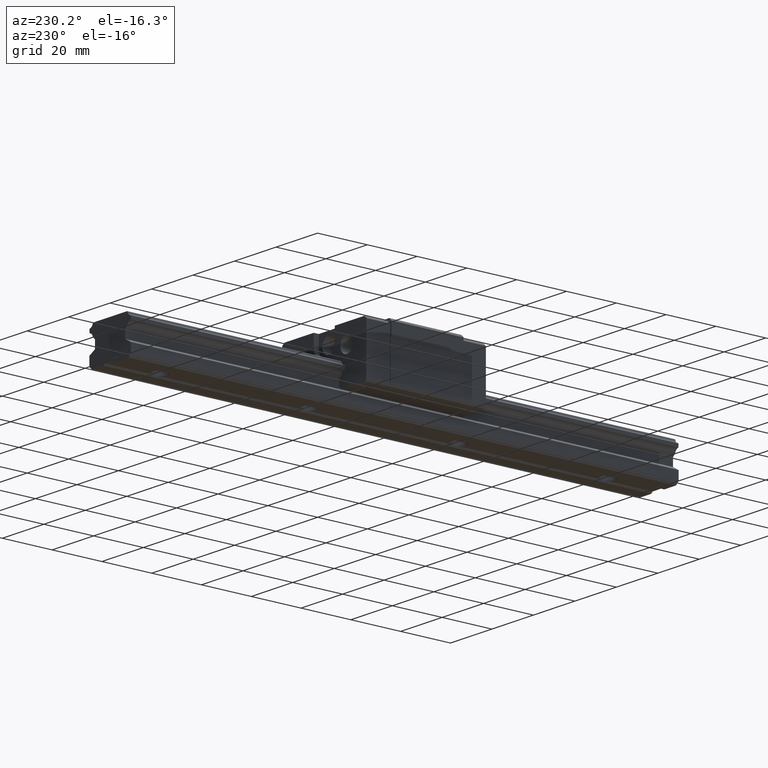
[diagram: clean part render]
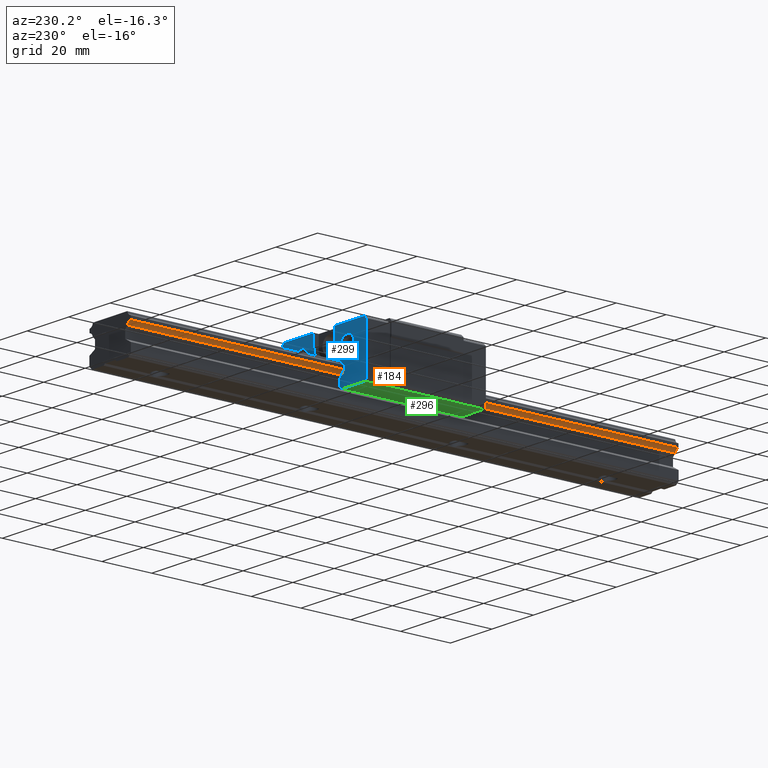
[diagram: same view with three faces highlighted in distinct colors, each labeled with its STEP entity id]
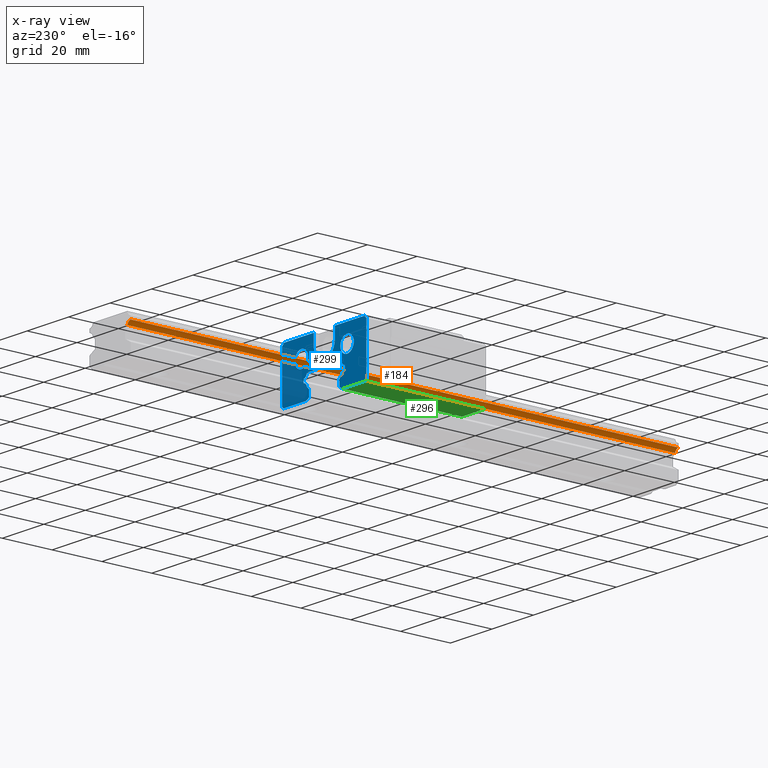
[diagram: x-ray of the same camera — body ghosted, the three highlighted faces saturated]
A machine part, auxiliary view with three faces highlighted in distinct colors.
The next image is the same camera in x-ray (body ghosted, the three faces saturated) — at least one of them is partly hidden behind the body in this view.
Their STEP definitions:

[orange] entity #184 — the highlighted cylindrical surface (edge-blend (fillet) strip) has radius 1.8 mm, axis along (0, -1, 0).
#184=ADVANCED_FACE('',(#382),#383,.F.);
#382=FACE_OUTER_BOUND('',#768,.T.);
#383=CYLINDRICAL_SURFACE('',#769,1.8);
#768=EDGE_LOOP('',(#1323,#1324,#1325,#1326));
#769=AXIS2_PLACEMENT_3D('',#1327,#1328,#1329);
#1323=ORIENTED_EDGE('',*,*,#2796,.T.);
#1324=ORIENTED_EDGE('',*,*,#2797,.F.);
#1325=ORIENTED_EDGE('',*,*,#2798,.F.);
#1326=ORIENTED_EDGE('',*,*,#2799,.T.);
#1327=CARTESIAN_POINT('',(-10.1449012806,110.0,9.5551077194));
#1328=DIRECTION('',(0.0,-1.0,0.0));
#1329=DIRECTION('',(0.0,0.0,-1.0));
#2796=EDGE_CURVE('',#3305,#3355,#3357,.T.);
#2797=EDGE_CURVE('',#3358,#3355,#3359,.T.);
#2798=EDGE_CURVE('',#3360,#3358,#3361,.T.);
#2799=EDGE_CURVE('',#3360,#3305,#3362,.T.);
#3305=VERTEX_POINT('',#4131);
#3355=VERTEX_POINT('',#4203);
#3357=CIRCLE('',#4206,1.8);
#3358=VERTEX_POINT('',#4207);
#3359=LINE('',#4208,#4209);
#3360=VERTEX_POINT('',#4210);
#3361=CIRCLE('',#4211,1.8);
#3362=LINE('',#4212,#4213);
#4131=CARTESIAN_POINT('',(-8.3723830664,-110.0,9.8684432906));
#4203=CARTESIAN_POINT('',(-9.83156570942089,-110.0,11.327625933646));
#4206=AXIS2_PLACEMENT_3D('',#5459,#5460,#5461);
#4207=CARTESIAN_POINT('',(-9.83156570942089,110.0,11.327625933646));
#4208=CARTESIAN_POINT('',(-9.83156570942089,110.0,11.327625933646));
#4209=VECTOR('',#5462,1000.0);
#4210=CARTESIAN_POINT('',(-8.3723830664,110.0,9.8684432906));
#4211=AXIS2_PLACEMENT_3D('',#5463,#5464,#5465);
#4212=CARTESIAN_POINT('',(-8.3723830664,110.0,9.8684432906));
#4213=VECTOR('',#5466,1000.0);
#5459=CARTESIAN_POINT('',(-10.1449012806,-110.0,9.5551077194));
#5460=DIRECTION('',(0.0,-1.0,0.0));
#5461=DIRECTION('',(1.0,0.0,0.0));
#5462=DIRECTION('',(0.0,-1.0,0.0));
#5463=CARTESIAN_POINT('',(-10.1449012806,110.0,9.5551077194));
#5464=DIRECTION('',(0.0,-1.0,0.0));
#5465=DIRECTION('',(1.0,0.0,0.0));
#5466=DIRECTION('',(0.0,-1.0,0.0));

[blue] entity #299 — the highlighted planar face has unit normal (0, -1, 0).
#299=ADVANCED_FACE('',(#626,#627,#628),#629,.F.);
#626=FACE_OUTER_BOUND('',#1012,.T.);
#627=FACE_BOUND('',#1013,.T.);
#628=FACE_BOUND('',#1014,.T.);
#629=PLANE('',#1015);
#1012=EDGE_LOOP('',(#2274,#2275,#2276,#2277,#2278,#2279,#2280,#2281,#2282,#2283,#2284,#2285,#2286,#2287,#2288,#2289,#2290,#2291,#2292,#2293,#2294,#2295,#2296,#2297,#2298,#2299,#2300,#2301,#2302,#2303,#2304,#2305,#2306));
#1013=EDGE_LOOP('',(#2307,#2308));
#1014=EDGE_LOOP('',(#2309,#2310));
#1015=AXIS2_PLACEMENT_3D('',#2311,#2312,#2313);
#2274=ORIENTED_EDGE('',*,*,#3064,.F.);
#2275=ORIENTED_EDGE('',*,*,#3102,.F.);
#2276=ORIENTED_EDGE('',*,*,#3103,.F.);
#2277=ORIENTED_EDGE('',*,*,#3055,.F.);
#2278=ORIENTED_EDGE('',*,*,#3104,.T.);
#2279=ORIENTED_EDGE('',*,*,#3098,.T.);
#2280=ORIENTED_EDGE('',*,*,#3075,.F.);
#2281=ORIENTED_EDGE('',*,*,#2927,.T.);
#2282=ORIENTED_EDGE('',*,*,#3077,.T.);
#2283=ORIENTED_EDGE('',*,*,#3069,.T.);
#2284=ORIENTED_EDGE('',*,*,#3099,.T.);
#2285=ORIENTED_EDGE('',*,*,#3005,.F.);
#2286=ORIENTED_EDGE('',*,*,#3085,.T.);
#2287=ORIENTED_EDGE('',*,*,#2957,.T.);
#2288=ORIENTED_EDGE('',*,*,#3100,.F.);
#2289=ORIENTED_EDGE('',*,*,#2964,.F.);
#2290=ORIENTED_EDGE('',*,*,#2892,.T.);
#2291=ORIENTED_EDGE('',*,*,#3105,.T.);
#2292=ORIENTED_EDGE('',*,*,#2940,.T.);
#2293=ORIENTED_EDGE('',*,*,#3101,.F.);
#2294=ORIENTED_EDGE('',*,*,#2980,.F.);
#2295=ORIENTED_EDGE('',*,*,#2924,.F.);
#2296=ORIENTED_EDGE('',*,*,#3044,.T.);
#2297=ORIENTED_EDGE('',*,*,#3079,.F.);
#2298=ORIENTED_EDGE('',*,*,#2932,.F.);
#2299=ORIENTED_EDGE('',*,*,#3037,.F.);
#2300=ORIENTED_EDGE('',*,*,#3084,.F.);
#2301=ORIENTED_EDGE('',*,*,#3059,.F.);
#2302=ORIENTED_EDGE('',*,*,#3106,.F.);
#2303=ORIENTED_EDGE('',*,*,#3062,.F.);
#2304=ORIENTED_EDGE('',*,*,#2962,.T.);
#2305=ORIENTED_EDGE('',*,*,#3107,.F.);
#2306=ORIENTED_EDGE('',*,*,#3003,.T.);
#2307=ORIENTED_EDGE('',*,*,#2921,.T.);
#2308=ORIENTED_EDGE('',*,*,#2911,.T.);
#2309=ORIENTED_EDGE('',*,*,#2919,.T.);
#2310=ORIENTED_EDGE('',*,*,#2915,.T.);
#2311=CARTESIAN_POINT('',(10.1449012806,24.0,9.5551077194));
#2312=DIRECTION('',(0.0,-1.0,0.0));
#2313=DIRECTION('',(0.0,0.0,-1.0));
#2892=EDGE_CURVE('',#3504,#3501,#3505,.T.);
#2911=EDGE_CURVE('',#3538,#3535,#3539,.T.);
#2915=EDGE_CURVE('',#3546,#3543,#3547,.T.);
#2919=EDGE_CURVE('',#3543,#3546,#3552,.T.);
#2921=EDGE_CURVE('',#3535,#3538,#3554,.T.);
#2924=EDGE_CURVE('',#3558,#3560,#3561,.T.);
#2927=EDGE_CURVE('',#3566,#3563,#3567,.T.);
#2932=EDGE_CURVE('',#3574,#3576,#3577,.T.);
#2940=EDGE_CURVE('',#3592,#3590,#3593,.T.);
#2957=EDGE_CURVE('',#3625,#3623,#3626,.T.);
#2962=EDGE_CURVE('',#3628,#3633,#3635,.T.);
#2964=EDGE_CURVE('',#3504,#3638,#3639,.T.);
#2980=EDGE_CURVE('',#3560,#3666,#3667,.T.);
#3003=EDGE_CURVE('',#3700,#3705,#3707,.T.);
#3005=EDGE_CURVE('',#3708,#3710,#3711,.T.);
#3037=EDGE_CURVE('',#3760,#3574,#3761,.T.);
#3044=EDGE_CURVE('',#3558,#3768,#3770,.T.);
#3055=EDGE_CURVE('',#3784,#3779,#3786,.T.);
#3059=EDGE_CURVE('',#3792,#3787,#3794,.T.);
#3062=EDGE_CURVE('',#3628,#3795,#3799,.T.);
#3064=EDGE_CURVE('',#3801,#3705,#3802,.T.);
#3069=EDGE_CURVE('',#3808,#3809,#3810,.T.);
#3075=EDGE_CURVE('',#3566,#3816,#3820,.T.);
#3077=EDGE_CURVE('',#3563,#3808,#3822,.T.);
#3079=EDGE_CURVE('',#3576,#3768,#3824,.T.);
#3084=EDGE_CURVE('',#3787,#3760,#3829,.T.);
#3085=EDGE_CURVE('',#3708,#3625,#3830,.T.);
#3098=EDGE_CURVE('',#3844,#3816,#3846,.T.);
#3099=EDGE_CURVE('',#3809,#3710,#3847,.T.);
#3100=EDGE_CURVE('',#3638,#3623,#3848,.T.);
#3101=EDGE_CURVE('',#3666,#3590,#3849,.T.);
#3102=EDGE_CURVE('',#3850,#3801,#3851,.T.);
#3103=EDGE_CURVE('',#3779,#3850,#3852,.T.);
#3104=EDGE_CURVE('',#3784,#3844,#3853,.T.);
#3105=EDGE_CURVE('',#3501,#3592,#3854,.T.);
#3106=EDGE_CURVE('',#3795,#3792,#3855,.T.);
#3107=EDGE_CURVE('',#3700,#3633,#3856,.T.);
#3501=VERTEX_POINT('',#4417);
#3504=VERTEX_POINT('',#4421);
#3505=CIRCLE('',#4422,5.05);
#3535=VERTEX_POINT('',#4461);
#3538=VERTEX_POINT('',#4465);
#3539=CIRCLE('',#4466,3.25);
#3543=VERTEX_POINT('',#4471);
#3546=VERTEX_POINT('',#4475);
#3547=CIRCLE('',#4476,3.25);
#3552=CIRCLE('',#4482,3.25);
#3554=CIRCLE('',#4484,3.25);
#3558=VERTEX_POINT('',#4489);
#3560=VERTEX_POINT('',#4492);
#3561=LINE('',#4493,#4494);
#3563=VERTEX_POINT('',#4497);
#3566=VERTEX_POINT('',#4501);
#3567=LINE('',#4502,#4503);
#3574=VERTEX_POINT('',#4513);
#3576=VERTEX_POINT('',#4516);
#3577=LINE('',#4517,#4518);
#3590=VERTEX_POINT('',#4537);
#3592=VERTEX_POINT('',#4540);
#3593=LINE('',#4541,#4542);
#3623=VERTEX_POINT('',#4586);
#3625=VERTEX_POINT('',#4589);
#3626=LINE('',#4590,#4591);
#3628=VERTEX_POINT('',#4594);
#3633=VERTEX_POINT('',#4601);
#3635=LINE('',#4604,#4605);
#3638=VERTEX_POINT('',#4609);
#3639=LINE('',#4610,#4611);
#3666=VERTEX_POINT('',#4653);
#3667=LINE('',#4654,#4655);
#3700=VERTEX_POINT('',#4705);
#3705=VERTEX_POINT('',#4712);
#3707=LINE('',#4715,#4716);
#3708=VERTEX_POINT('',#4717);
#3710=VERTEX_POINT('',#4720);
#3711=LINE('',#4721,#4722);
#3760=VERTEX_POINT('',#4797);
#3761=LINE('',#4798,#4799);
#3768=VERTEX_POINT('',#4809);
#3770=LINE('',#4812,#4813);
#3779=VERTEX_POINT('',#4828);
#3784=VERTEX_POINT('',#4835);
#3786=LINE('',#4838,#4839);
#3787=VERTEX_POINT('',#4840);
#3792=VERTEX_POINT('',#4846);
#3794=CIRCLE('',#4849,1.8);
#3795=VERTEX_POINT('',#4850);
#3799=LINE('',#4856,#4857);
#3801=VERTEX_POINT('',#4860);
#3802=LINE('',#4861,#4862);
#3808=VERTEX_POINT('',#4871);
#3809=VERTEX_POINT('',#4872);
#3810=LINE('',#4873,#4874);
#3816=VERTEX_POINT('',#4883);
#3820=CIRCLE('',#4888,1.8);
#3822=LINE('',#4891,#4892);
#3824=LINE('',#4895,#4896);
#3829=LINE('',#4903,#4904);
#3830=LINE('',#4905,#4906);
#3844=VERTEX_POINT('',#4926);
#3846=LINE('',#4929,#4930);
#3847=LINE('',#4931,#4932);
#3848=LINE('',#4933,#4934);
#3849=LINE('',#4935,#4936);
#3850=VERTEX_POINT('',#4937);
#3851=LINE('',#4938,#4939);
#3852=CIRCLE('',#4940,1.8);
#3853=LINE('',#4941,#4942);
#3854=CIRCLE('',#4943,5.05);
#3855=LINE('',#4944,#4945);
#3856=CIRCLE('',#4946,1.8);
#4417=CARTESIAN_POINT('',(6.18426208680301E-016,24.0,16.850009));
#4421=CARTESIAN_POINT('',(-5.05,24.0,21.900009));
#4422=AXIS2_PLACEMENT_3D('',#5611,#5612,#5613);
#4461=CARTESIAN_POINT('',(10.9999955,24.0,16.150009));
#4465=CARTESIAN_POINT('',(10.9999955,24.0,22.650009));
#4466=AXIS2_PLACEMENT_3D('',#5648,#5649,#5650);
#4471=CARTESIAN_POINT('',(-10.9999955,24.0,16.150009));
#4475=CARTESIAN_POINT('',(-10.9999955,24.0,22.650009));
#4476=AXIS2_PLACEMENT_3D('',#5656,#5657,#5658);
#4482=AXIS2_PLACEMENT_3D('',#5666,#5667,#5668);
#4484=AXIS2_PLACEMENT_3D('',#5672,#5673,#5674);
#4489=CARTESIAN_POINT('',(20.3,24.0,6.0414303562));
#4492=CARTESIAN_POINT('',(20.3,24.0,25.5585876438));
#4493=CARTESIAN_POINT('',(20.3,24.0,6.0414303562));
#4494=VECTOR('',#5677,1000.0);
#4497=CARTESIAN_POINT('',(-7.3,24.0,8.7960602242));
#4501=CARTESIAN_POINT('',(-8.3723830664,24.0,9.8684432906));
#4502=CARTESIAN_POINT('',(-8.3723830664,24.0,9.8684432906));
#4503=VECTOR('',#5680,1000.0);
#4513=CARTESIAN_POINT('',(7.3,24.0,6.23620499595985));
#4516=CARTESIAN_POINT('',(8.7483339502,24.0,5.400009));
#4517=CARTESIAN_POINT('',(7.23,24.0,6.2766195148));
#4518=VECTOR('',#5685,1000.0);
#4537=CARTESIAN_POINT('',(5.05,24.0,26.500009));
#4540=CARTESIAN_POINT('',(5.05,24.0,21.900009));
#4541=CARTESIAN_POINT('',(5.05,24.0,21.900009));
#4542=VECTOR('',#5693,1000.0);
#4586=CARTESIAN_POINT('',(-19.3585786438,24.0,26.500009));
#4589=CARTESIAN_POINT('',(-20.3,24.0,25.5585876438));
#4590=CARTESIAN_POINT('',(-20.3,24.0,25.5585876438));
#4591=VECTOR('',#5712,1000.0);
#4594=CARTESIAN_POINT('',(9.93,24.0,12.6739577758));
#4601=CARTESIAN_POINT('',(9.83156570942089,24.0,12.772392066354));
#4604=CARTESIAN_POINT('',(9.93,24.0,12.6739577758));
#4605=VECTOR('',#5717,1000.0);
#4609=CARTESIAN_POINT('',(-5.05,24.0,26.500009));
#4610=CARTESIAN_POINT('',(-5.05,24.0,21.900009));
#4611=VECTOR('',#5719,1000.0);
#4653=CARTESIAN_POINT('',(19.3585786438,24.0,26.500009));
#4654=CARTESIAN_POINT('',(20.3,24.0,25.5585876438));
#4655=VECTOR('',#5735,1000.0);
#4705=CARTESIAN_POINT('',(8.3723830664,24.0,14.2315747094));
#4712=CARTESIAN_POINT('',(8.2039487758,24.0,14.400009));
#4715=CARTESIAN_POINT('',(8.3723830664,24.0,14.2315747094));
#4716=VECTOR('',#5762,1000.0);
#4717=CARTESIAN_POINT('',(-20.3,24.0,6.0414303562));
#4720=CARTESIAN_POINT('',(-19.6585786438,24.0,5.400009));
#4721=CARTESIAN_POINT('',(-20.3,24.0,6.0414303562));
#4722=VECTOR('',#5764,1000.0);
#4797=CARTESIAN_POINT('',(7.3,24.0,8.7960602242));
#4798=CARTESIAN_POINT('',(7.3,24.0,9.5551077194));
#4799=VECTOR('',#5806,1000.0);
#4809=CARTESIAN_POINT('',(19.6585786438,24.0,5.400009));
#4812=CARTESIAN_POINT('',(20.3,24.0,6.0414303562));
#4813=VECTOR('',#5817,1000.0);
#4828=CARTESIAN_POINT('',(-9.8315657094,24.0,12.7723920664));
#4835=CARTESIAN_POINT('',(-9.93,24.0,12.6739577758));
#4838=CARTESIAN_POINT('',(-9.93,24.0,12.6739577758));
#4839=VECTOR('',#5830,1000.0);
#4840=CARTESIAN_POINT('',(8.37238306635399,24.0,9.86844329057911));
#4846=CARTESIAN_POINT('',(9.8315657094,24.0,11.3276259336));
#4849=AXIS2_PLACEMENT_3D('',#5836,#5837,#5838);
#4850=CARTESIAN_POINT('',(9.93,24.0,11.4260602242));
#4856=CARTESIAN_POINT('',(9.93,24.0,12.6739577758));
#4857=VECTOR('',#5841,1000.0);
#4860=CARTESIAN_POINT('',(-8.2039487758,24.0,14.400009));
#4861=CARTESIAN_POINT('',(10.1449012806,24.0,14.400009));
#4862=VECTOR('',#5843,1000.0);
#4871=CARTESIAN_POINT('',(-7.3,24.0,6.23620499595985));
#4872=CARTESIAN_POINT('',(-8.7483339502,24.0,5.400009));
#4873=CARTESIAN_POINT('',(-7.23,24.0,6.2766195148));
#4874=VECTOR('',#5850,1000.0);
#4883=CARTESIAN_POINT('',(-9.83156570942089,24.0,11.327625933646));
#4888=AXIS2_PLACEMENT_3D('',#5858,#5859,#5860);
#4891=CARTESIAN_POINT('',(-7.3,24.0,9.5551077194));
#4892=VECTOR('',#5862,1000.0);
#4895=CARTESIAN_POINT('',(8.7483339502,24.0,5.400009));
#4896=VECTOR('',#5864,1000.0);
#4903=CARTESIAN_POINT('',(8.3723830664,24.0,9.8684432906));
#4904=VECTOR('',#5873,1000.0);
#4905=CARTESIAN_POINT('',(-20.3,24.0,6.0414303562));
#4906=VECTOR('',#5874,1000.0);
#4926=CARTESIAN_POINT('',(-9.93,24.0,11.4260602242));
#4929=CARTESIAN_POINT('',(-9.93,24.0,11.4260602242));
#4930=VECTOR('',#5897,1000.0);
#4931=CARTESIAN_POINT('',(-8.7483339502,24.0,5.400009));
#4932=VECTOR('',#5898,1000.0);
#4933=CARTESIAN_POINT('',(19.3585786438,24.0,26.500009));
#4934=VECTOR('',#5899,1000.0);
#4935=CARTESIAN_POINT('',(19.3585786438,24.0,26.500009));
#4936=VECTOR('',#5900,1000.0);
#4937=CARTESIAN_POINT('',(-8.37238306635399,24.0,14.2315747094209));
#4938=CARTESIAN_POINT('',(-8.3723830664,24.0,14.2315747094));
#4939=VECTOR('',#5901,1000.0);
#4940=AXIS2_PLACEMENT_3D('',#5902,#5903,#5904);
#4941=CARTESIAN_POINT('',(-9.93,24.0,12.6739577758));
#4942=VECTOR('',#5905,1000.0);
#4943=AXIS2_PLACEMENT_3D('',#5906,#5907,#5908);
#4944=CARTESIAN_POINT('',(9.93,24.0,11.4260602242));
#4945=VECTOR('',#5909,1000.0);
#4946=AXIS2_PLACEMENT_3D('',#5910,#5911,#5912);
#5611=CARTESIAN_POINT('',(0.0,24.0,21.900009));
#5612=DIRECTION('',(0.0,-1.0,0.0));
#5613=DIRECTION('',(1.0,0.0,0.0));
#5648=CARTESIAN_POINT('',(10.9999955,24.0,19.400009));
#5649=DIRECTION('',(0.0,-1.0,0.0));
#5650=DIRECTION('',(0.0,0.0,-1.0));
#5656=CARTESIAN_POINT('',(-10.9999955,24.0,19.400009));
#5657=DIRECTION('',(0.0,-1.0,0.0));
#5658=DIRECTION('',(0.0,0.0,-1.0));
#5666=CARTESIAN_POINT('',(-10.9999955,24.0,19.400009));
#5667=DIRECTION('',(0.0,-1.0,0.0));
#5668=DIRECTION('',(0.0,0.0,-1.0));
#5672=CARTESIAN_POINT('',(10.9999955,24.0,19.400009));
#5673=DIRECTION('',(0.0,-1.0,0.0));
#5674=DIRECTION('',(0.0,0.0,-1.0));
#5677=DIRECTION('',(0.0,0.0,1.0));
#5680=DIRECTION('',(0.707106781186547,0.0,-0.707106781186548));
#5685=DIRECTION('',(0.866025403801163,0.0,-0.499999999971032));
#5693=DIRECTION('',(0.0,0.0,1.0));
#5712=DIRECTION('',(0.707106781186549,0.0,0.707106781186546));
#5717=DIRECTION('',(-0.707106781186504,0.0,0.707106781186591));
#5719=DIRECTION('',(0.0,0.0,1.0));
#5735=DIRECTION('',(-0.707106781186549,0.0,0.707106781186546));
#5762=DIRECTION('',(-0.707106781186548,0.0,0.707106781186548));
#5764=DIRECTION('',(0.707106781186549,0.0,-0.707106781186547));
#5806=DIRECTION('',(0.0,0.0,-1.0));
#5817=DIRECTION('',(-0.707106781186549,0.0,-0.707106781186547));
#5830=DIRECTION('',(0.707106781186504,0.0,0.707106781186591));
#5836=CARTESIAN_POINT('',(10.1449012806,24.0,9.5551077194));
#5837=DIRECTION('',(0.0,-1.0,0.0));
#5838=DIRECTION('',(1.0,0.0,0.0));
#5841=DIRECTION('',(0.0,0.0,-1.0));
#5843=DIRECTION('',(1.0,0.0,0.0));
#5850=DIRECTION('',(-0.866025403801163,0.0,-0.499999999971032));
#5858=CARTESIAN_POINT('',(-10.1449012806,24.0,9.5551077194));
#5859=DIRECTION('',(0.0,-1.0,0.0));
#5860=DIRECTION('',(1.0,0.0,0.0));
#5862=DIRECTION('',(0.0,0.0,-1.0));
#5864=DIRECTION('',(1.0,0.0,0.0));
#5873=DIRECTION('',(-0.707106781186547,0.0,-0.707106781186548));
#5874=DIRECTION('',(0.0,0.0,1.0));
#5897=DIRECTION('',(0.707106781186504,0.0,-0.707106781186591));
#5898=DIRECTION('',(-1.0,0.0,0.0));
#5899=DIRECTION('',(-1.0,0.0,0.0));
#5900=DIRECTION('',(-1.0,0.0,0.0));
#5901=DIRECTION('',(0.707106781186548,0.0,0.707106781186548));
#5902=CARTESIAN_POINT('',(-10.1449012806,24.0,14.5449102806));
#5903=DIRECTION('',(0.0,-1.0,0.0));
#5904=DIRECTION('',(1.0,0.0,0.0));
#5905=DIRECTION('',(0.0,0.0,-1.0));
#5906=CARTESIAN_POINT('',(0.0,24.0,21.900009));
#5907=DIRECTION('',(0.0,-1.0,0.0));
#5908=DIRECTION('',(1.0,0.0,0.0));
#5909=DIRECTION('',(-0.707106781186504,0.0,-0.707106781186591));
#5910=CARTESIAN_POINT('',(10.1449012806,24.0,14.5449102806));
#5911=DIRECTION('',(0.0,-1.0,0.0));
#5912=DIRECTION('',(1.0,0.0,0.0));

[green] entity #296 — the highlighted planar face has unit normal (0, 0, 1).
#296=ADVANCED_FACE('',(#620),#621,.F.);
#620=FACE_OUTER_BOUND('',#1006,.T.);
#621=PLANE('',#1007);
#1006=EDGE_LOOP('',(#2246,#2247,#2248,#2249,#2250,#2251,#2252,#2253));
#1007=AXIS2_PLACEMENT_3D('',#2254,#2255,#2256);
#2246=ORIENTED_EDGE('',*,*,#3072,.T.);
#2247=ORIENTED_EDGE('',*,*,#3090,.T.);
#2248=ORIENTED_EDGE('',*,*,#3014,.T.);
#2249=ORIENTED_EDGE('',*,*,#3034,.T.);
#2250=ORIENTED_EDGE('',*,*,#3049,.F.);
#2251=ORIENTED_EDGE('',*,*,#2986,.F.);
#2252=ORIENTED_EDGE('',*,*,#3006,.F.);
#2253=ORIENTED_EDGE('',*,*,#3099,.F.);
#2254=CARTESIAN_POINT('',(-8.7483339502,14.5,5.400009));
#2255=DIRECTION('',(0.0,0.0,1.0));
#2256=DIRECTION('',(1.0,0.0,0.0));
#2986=EDGE_CURVE('',#3674,#3676,#3677,.T.);
#3006=EDGE_CURVE('',#3710,#3674,#3712,.T.);
#3014=EDGE_CURVE('',#3724,#3722,#3725,.T.);
#3034=EDGE_CURVE('',#3722,#3754,#3756,.T.);
#3049=EDGE_CURVE('',#3676,#3754,#3775,.T.);
#3072=EDGE_CURVE('',#3809,#3813,#3815,.T.);
#3090=EDGE_CURVE('',#3813,#3724,#3836,.T.);
#3099=EDGE_CURVE('',#3809,#3710,#3847,.T.);
#3674=VERTEX_POINT('',#4666);
#3676=VERTEX_POINT('',#4669);
#3677=LINE('',#4670,#4671);
#3710=VERTEX_POINT('',#4720);
#3712=LINE('',#4723,#4724);
#3722=VERTEX_POINT('',#4739);
#3724=VERTEX_POINT('',#4742);
#3725=LINE('',#4743,#4744);
#3754=VERTEX_POINT('',#4787);
#3756=LINE('',#4790,#4791);
#3775=LINE('',#4821,#4822);
#3809=VERTEX_POINT('',#4872);
#3813=VERTEX_POINT('',#4878);
#3815=LINE('',#4881,#4882);
#3836=LINE('',#4915,#4916);
#3847=LINE('',#4931,#4932);
#4666=CARTESIAN_POINT('',(-19.6585786438,14.5,5.400009));
#4669=CARTESIAN_POINT('',(-19.7999995,14.5,5.400009));
#4670=CARTESIAN_POINT('',(-8.7483339502,14.5,5.400009));
#4671=VECTOR('',#5741,1000.0);
#4720=CARTESIAN_POINT('',(-19.6585786438,24.0,5.400009));
#4723=CARTESIAN_POINT('',(-19.6585786438,24.0,5.400009));
#4724=VECTOR('',#5765,1000.0);
#4739=CARTESIAN_POINT('',(-19.6585786438,-14.5,5.400009));
#4742=CARTESIAN_POINT('',(-19.6585786438,-24.0,5.400009));
#4743=CARTESIAN_POINT('',(-19.6585786438,-24.0,5.400009));
#4744=VECTOR('',#5775,1000.0);
#4787=CARTESIAN_POINT('',(-19.7999995,-14.5,5.400009));
#4790=CARTESIAN_POINT('',(-8.7483339502,-14.5,5.400009));
#4791=VECTOR('',#5803,1000.0);
#4821=CARTESIAN_POINT('',(-19.7999995,14.5,5.400009));
#4822=VECTOR('',#5824,1000.0);
#4872=CARTESIAN_POINT('',(-8.7483339502,24.0,5.400009));
#4878=CARTESIAN_POINT('',(-8.7483339502,-24.0,5.400009));
#4881=CARTESIAN_POINT('',(-8.7483339502,14.5,5.400009));
#4882=VECTOR('',#5853,1000.0);
#4915=CARTESIAN_POINT('',(-8.7483339502,-24.0,5.400009));
#4916=VECTOR('',#5881,1000.0);
#4931=CARTESIAN_POINT('',(-8.7483339502,24.0,5.400009));
#4932=VECTOR('',#5898,1000.0);
#5741=DIRECTION('',(-1.0,0.0,0.0));
#5765=DIRECTION('',(0.0,-1.0,0.0));
#5775=DIRECTION('',(0.0,1.0,0.0));
#5803=DIRECTION('',(-1.0,0.0,0.0));
#5824=DIRECTION('',(0.0,-1.0,0.0));
#5853=DIRECTION('',(0.0,-1.0,0.0));
#5881=DIRECTION('',(-1.0,0.0,0.0));
#5898=DIRECTION('',(-1.0,0.0,0.0));